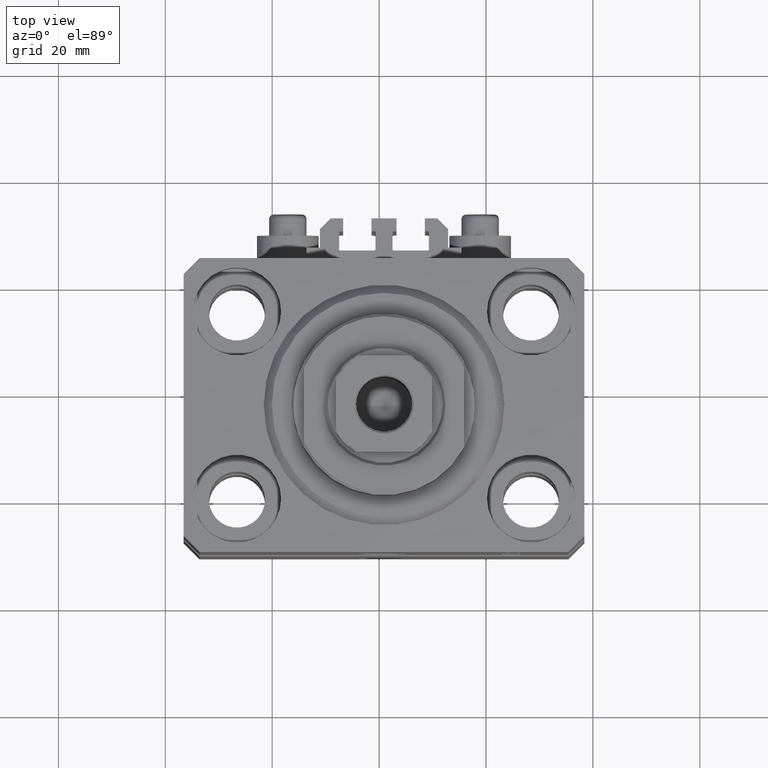
[diagram: clean part render]
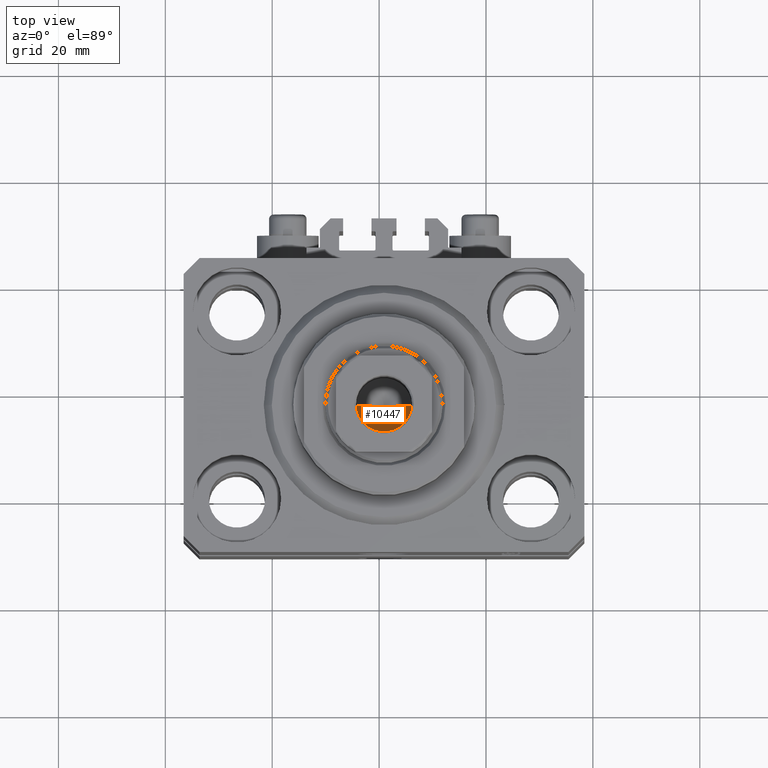
[diagram: same view with one face highlighted and labeled with its STEP entity id]
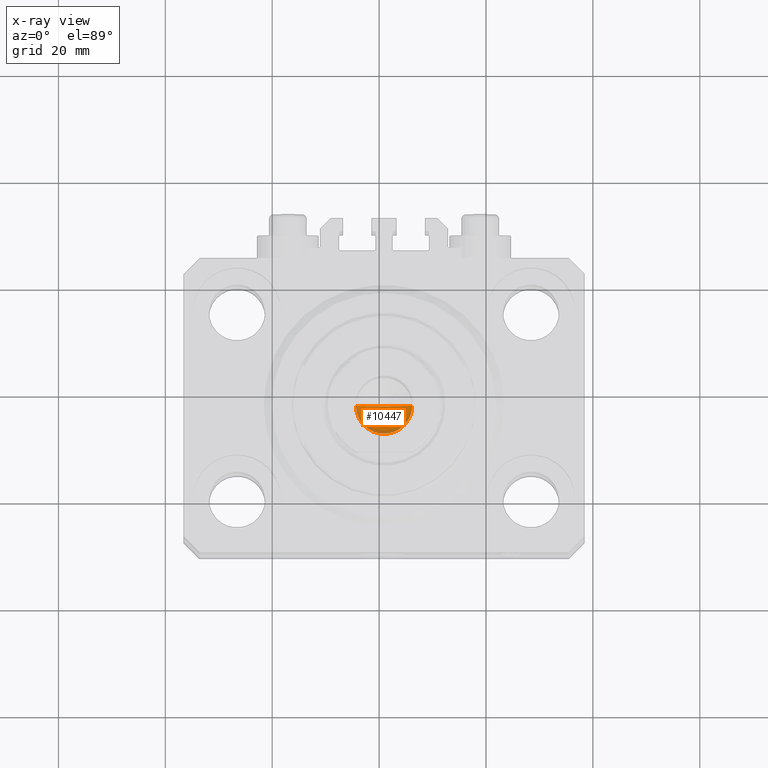
[diagram: x-ray of the same camera — body ghosted, the highlighted face saturated]
A machine part, top view. The second image highlights one B-rep face of the part: STEP entity #10447.
The next image is the same camera in x-ray: the body ghosted, the highlighted face saturated — about 11% of this face is hidden behind the body in this view.
In plain terms, the highlighted conical surface has half-angle 59 deg.
Its self-contained STEP definition (entity closure, byte-faithful):
#978 = VECTOR ( 'NONE', #31547, 1000.000000000000000 ) ;
#1292 = VERTEX_POINT ( 'NONE', #33915 ) ;
#1633 = VERTEX_POINT ( 'NONE', #6453 ) ;
#2667 = EDGE_CURVE ( 'NONE', #1633, #1292, #25962, .T. ) ;
#3431 = FACE_OUTER_BOUND ( 'NONE', #36669, .T. ) ;
#4202 = DIRECTION ( 'NONE',  ( 1.000000000000000000, 0.000000000000000000, 0.000000000000000000 ) ) ;
#4253 = ORIENTED_EDGE ( 'NONE', *, *, #46055, .T. ) ;
#5022 = ORIENTED_EDGE ( 'NONE', *, *, #16201, .F. ) ;
#6453 = CARTESIAN_POINT ( 'NONE',  ( -5.249999999999994671, 6.429395695523597250E-16, 60.00000000000000711 ) ) ;
#8412 = LINE ( 'NONE', #30227, #13349 ) ;
#10447 = ADVANCED_FACE ( 'NONE', ( #3431 ), #13549, .F. ) ;
#13349 = VECTOR ( 'NONE', #44816, 1000.000000000000000 ) ;
#13549 = CONICAL_SURFACE ( 'NONE', #28102, 5.249999999999994671, 1.029744258676653645 ) ;
#14051 = CARTESIAN_POINT ( 'NONE',  ( -6.783656367213677939E-15, 0.000000000000000000, 56.84548175010531423 ) ) ;
#14452 = CARTESIAN_POINT ( 'NONE',  ( 0.000000000000000000, 0.000000000000000000, 60.00000000000000711 ) ) ;
#16201 = EDGE_CURVE ( 'NONE', #30452, #1292, #8412, .T. ) ;
#17384 = LINE ( 'NONE', #27955, #978 ) ;
#25962 = CIRCLE ( 'NONE', #30700, 5.249999999999994671 ) ;
#27955 = CARTESIAN_POINT ( 'NONE',  ( -5.249999999999994671, 6.429395695523597250E-16, 60.00000000000000711 ) ) ;
#28102 = AXIS2_PLACEMENT_3D ( 'NONE', #14452, #35550, #28858 ) ;
#28858 = DIRECTION ( 'NONE',  ( 1.000000000000000000, 0.000000000000000000, 0.000000000000000000 ) ) ;
#30227 = CARTESIAN_POINT ( 'NONE',  ( 5.249999999999994671, 0.000000000000000000, 60.00000000000000711 ) ) ;
#30452 = VERTEX_POINT ( 'NONE', #14051 ) ;
#30700 = AXIS2_PLACEMENT_3D ( 'NONE', #34152, #33682, #4202 ) ;
#31547 = DIRECTION ( 'NONE',  ( -0.8571673007021118895, 1.049727191138618079E-16, 0.5150380749100549327 ) ) ;
#33682 = DIRECTION ( 'NONE',  ( -0.000000000000000000, -0.000000000000000000, 1.000000000000000000 ) ) ;
#33915 = CARTESIAN_POINT ( 'NONE',  ( 5.249999999999994671, 0.000000000000000000, 60.00000000000000711 ) ) ;
#34152 = CARTESIAN_POINT ( 'NONE',  ( 0.000000000000000000, 0.000000000000000000, 60.00000000000000711 ) ) ;
#35550 = DIRECTION ( 'NONE',  ( -0.000000000000000000, -0.000000000000000000, 1.000000000000000000 ) ) ;
#36669 = EDGE_LOOP ( 'NONE', ( #5022, #4253, #46332 ) ) ;
#44816 = DIRECTION ( 'NONE',  ( 0.8571673007021118895, 0.000000000000000000, 0.5150380749100549327 ) ) ;
#46055 = EDGE_CURVE ( 'NONE', #30452, #1633, #17384, .T. ) ;
#46332 = ORIENTED_EDGE ( 'NONE', *, *, #2667, .T. ) ;